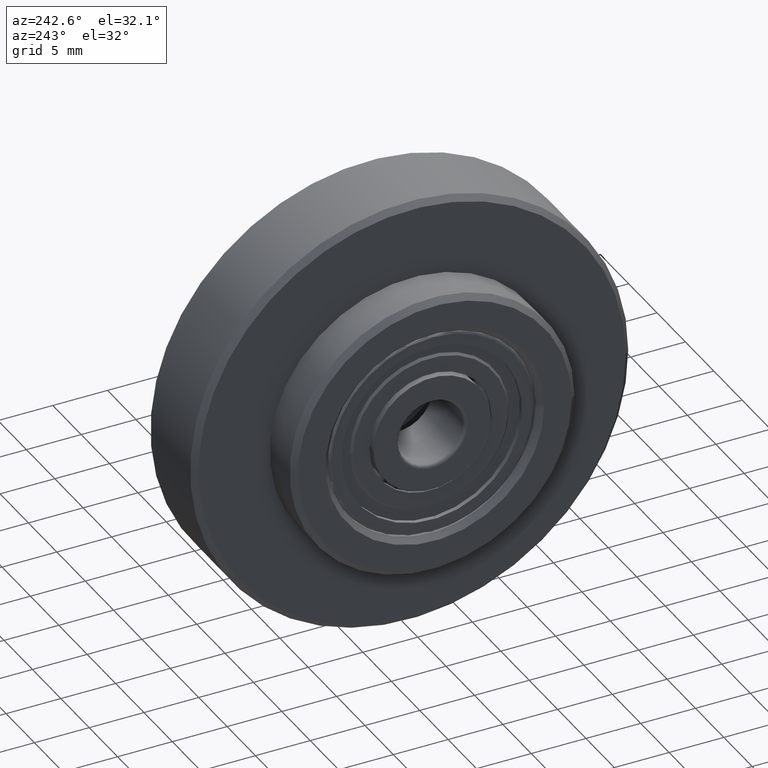
[diagram: clean part render]
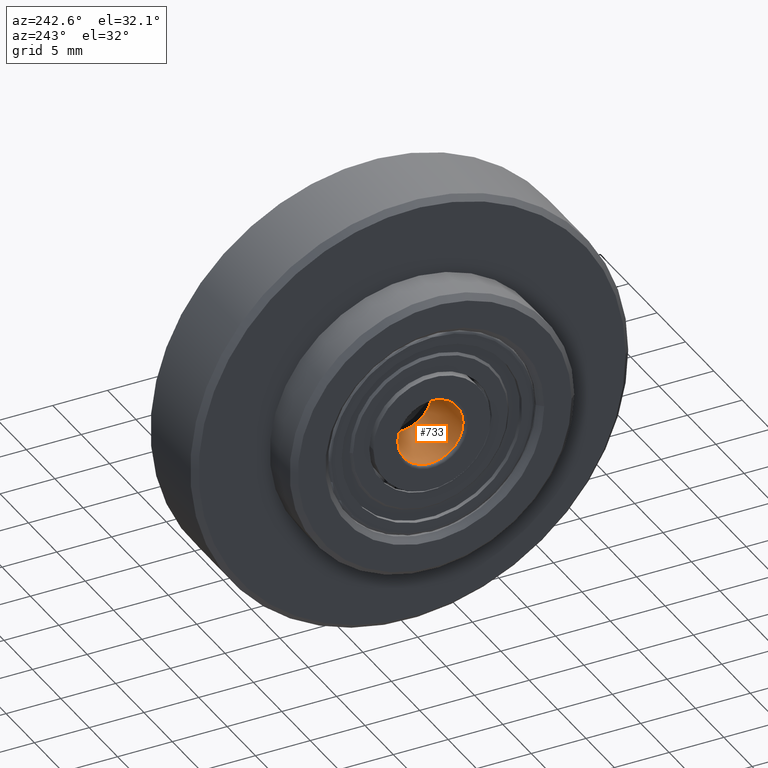
[diagram: same view with one face highlighted and labeled with its STEP entity id]
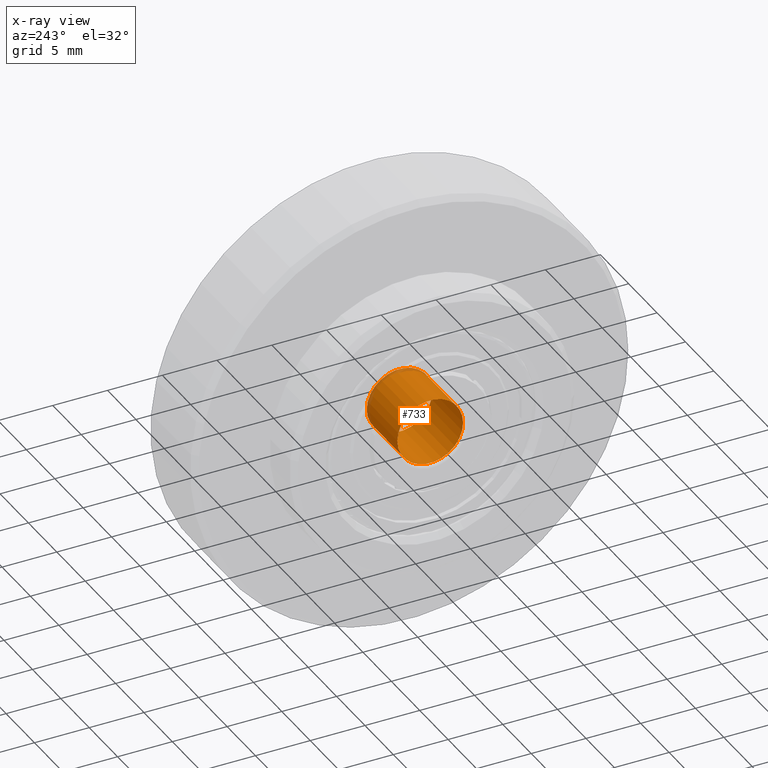
[diagram: x-ray of the same camera — body ghosted, the highlighted face saturated]
A machine part, auxiliary view. The second image highlights one B-rep face of the part: STEP entity #733.
The next image is the same camera in x-ray: the body ghosted, the highlighted face saturated — about 4% of this face is hidden behind the body in this view.
In plain terms, the highlighted cylindrical surface (bore or boss wall) has radius 3 mm, axis along (1, -0, -0).
Its self-contained STEP definition (entity closure, byte-faithful):
#81=CYLINDRICAL_SURFACE('',#858,3.);
#129=FACE_BOUND('',#281,.T.);
#192=FACE_OUTER_BOUND('',#280,.T.);
#280=EDGE_LOOP('',(#611));
#281=EDGE_LOOP('',(#612));
#377=CIRCLE('',#857,3.);
#378=CIRCLE('',#859,3.);
#444=VERTEX_POINT('',#1300);
#445=VERTEX_POINT('',#1303);
#517=EDGE_CURVE('',#444,#444,#377,.T.);
#518=EDGE_CURVE('',#445,#445,#378,.T.);
#611=ORIENTED_EDGE('',*,*,#518,.F.);
#612=ORIENTED_EDGE('',*,*,#517,.T.);
#733=ADVANCED_FACE('',(#192,#129),#81,.F.);
#857=AXIS2_PLACEMENT_3D('',#1301,#1053,#1054);
#858=AXIS2_PLACEMENT_3D('',#1302,#1055,#1056);
#859=AXIS2_PLACEMENT_3D('',#1304,#1057,#1058);
#1053=DIRECTION('center_axis',(1.,0.,0.));
#1054=DIRECTION('ref_axis',(0.,1.,0.));
#1055=DIRECTION('center_axis',(1.,0.,0.));
#1056=DIRECTION('ref_axis',(0.,1.,0.));
#1057=DIRECTION('center_axis',(1.,0.,0.));
#1058=DIRECTION('ref_axis',(0.,1.,0.));
#1300=CARTESIAN_POINT('',(5.7,3.,0.));
#1301=CARTESIAN_POINT('Origin',(5.7,0.,0.));
#1302=CARTESIAN_POINT('Origin',(3.,0.,0.));
#1303=CARTESIAN_POINT('',(0.3,3.,0.));
#1304=CARTESIAN_POINT('Origin',(0.3,0.,0.));